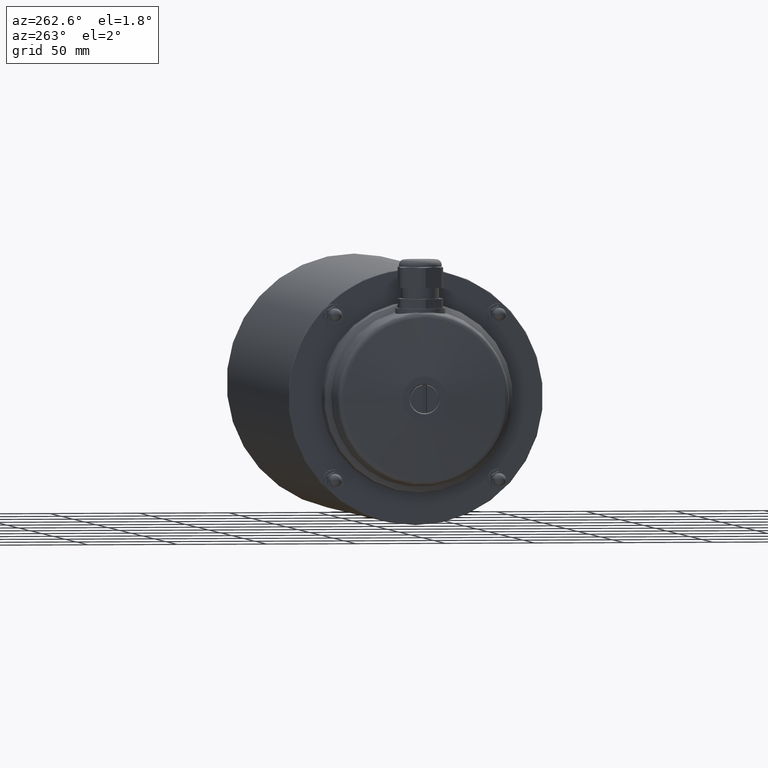
[diagram: clean part render]
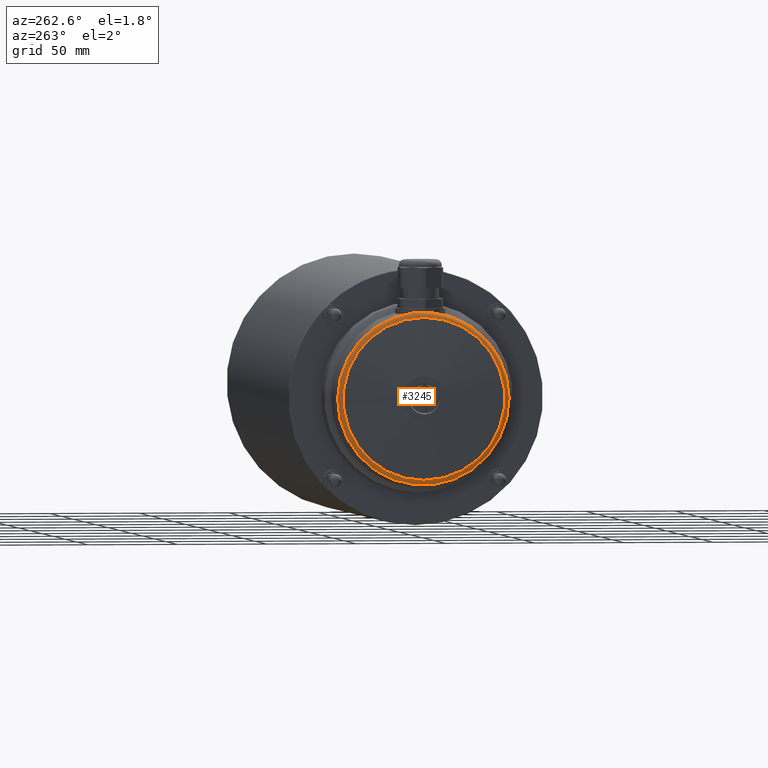
[diagram: same view with one face highlighted and labeled with its STEP entity id]
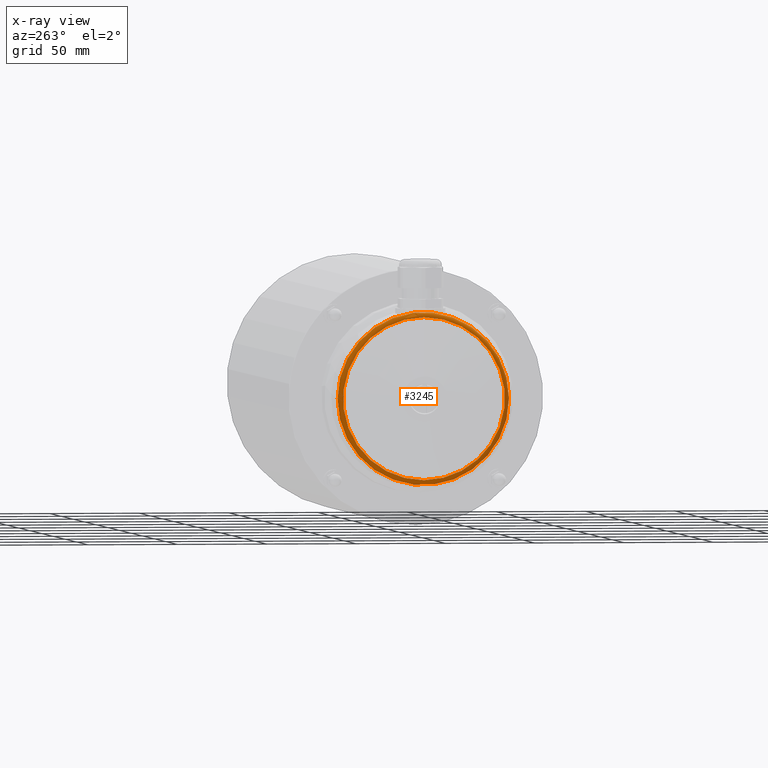
[diagram: x-ray of the same camera — body ghosted, the highlighted face saturated]
A machine part, auxiliary view. The second image highlights one B-rep face of the part: STEP entity #3245.
The next image is the same camera in x-ray: the body ghosted, the highlighted face saturated — about 0% of this face is hidden behind the body in this view.
In plain terms, the highlighted toroidal blend (fillet) surface has major radius 45.0164 mm and minor (blend) radius 3 mm.
Its self-contained STEP definition (entity closure, byte-faithful):
#54=B_SPLINE_CURVE_WITH_KNOTS('',3,(#4594,#4595,#4596,#4597,#4598,#4599,
#4600),.UNSPECIFIED.,.F.,.F.,(4,1,1,1,4),(5.09810159842404E-7,0.00277432661867784,
0.00554814342719584,0.00832196023571384,0.0110957770442318),
 .UNSPECIFIED.);
#71=TOROIDAL_SURFACE('',#3474,45.0164095237368,3.);
#543=ORIENTED_EDGE('',*,*,#1066,.F.);
#544=ORIENTED_EDGE('',*,*,#1067,.T.);
#545=ORIENTED_EDGE('',*,*,#1065,.F.);
#1065=EDGE_CURVE('',#1333,#1333,#1513,.T.);
#1066=EDGE_CURVE('',#1334,#1335,#54,.T.);
#1067=EDGE_CURVE('',#1334,#1335,#1514,.T.);
#1333=VERTEX_POINT('',#4592);
#1334=VERTEX_POINT('',#4601);
#1335=VERTEX_POINT('',#4602);
#1513=CIRCLE('',#3473,45.2778767519798);
#1514=CIRCLE('',#3475,48.0049936180121);
#1643=EDGE_LOOP('',(#543,#544));
#1644=EDGE_LOOP('',(#545));
#1886=FACE_BOUND('',#1643,.T.);
#1887=FACE_BOUND('',#1644,.T.);
#3245=ADVANCED_FACE('',(#1886,#1887),#71,.T.);
#3473=AXIS2_PLACEMENT_3D('',#4591,#3890,#3891);
#3474=AXIS2_PLACEMENT_3D('',#4593,#3892,#3893);
#3475=AXIS2_PLACEMENT_3D('',#4603,#3894,#3895);
#3890=DIRECTION('',(-1.,0.,0.));
#3891=DIRECTION('',(0.,0.,1.));
#3892=DIRECTION('',(-1.,0.,0.));
#3893=DIRECTION('',(0.,0.,1.));
#3894=DIRECTION('',(-1.,0.,0.));
#3895=DIRECTION('',(0.,0.,1.));
#4591=CARTESIAN_POINT('',(-307.632307369752,0.,0.));
#4592=CARTESIAN_POINT('',(-307.632307369752,0.,45.2778767519798));
#4593=CARTESIAN_POINT('',(-304.643723275477,0.,0.));
#4594=CARTESIAN_POINT('',(-304.90519050372,5.42734355488052,47.6972048887844));
#4595=CARTESIAN_POINT('',(-305.267899034784,4.56489166780522,47.7634034380248));
#4596=CARTESIAN_POINT('',(-305.812003647978,2.79805459269348,47.7425014583876));
#4597=CARTESIAN_POINT('',(-306.092593458139,-0.00597975294695644,47.6673535711381));
#4598=CARTESIAN_POINT('',(-305.817622255143,-2.76747176409326,47.7420228897695));
#4599=CARTESIAN_POINT('',(-305.267244367644,-4.56644834172584,47.7632839536151));
#4600=CARTESIAN_POINT('',(-304.905190503721,-5.42734355488081,47.6972048887851));
#4601=CARTESIAN_POINT('',(-304.90519050372,5.42734355488053,47.6972048887844));
#4602=CARTESIAN_POINT('',(-304.90519050372,-5.42734355488053,47.6972048887844));
#4603=CARTESIAN_POINT('',(-304.90519050372,0.,0.));